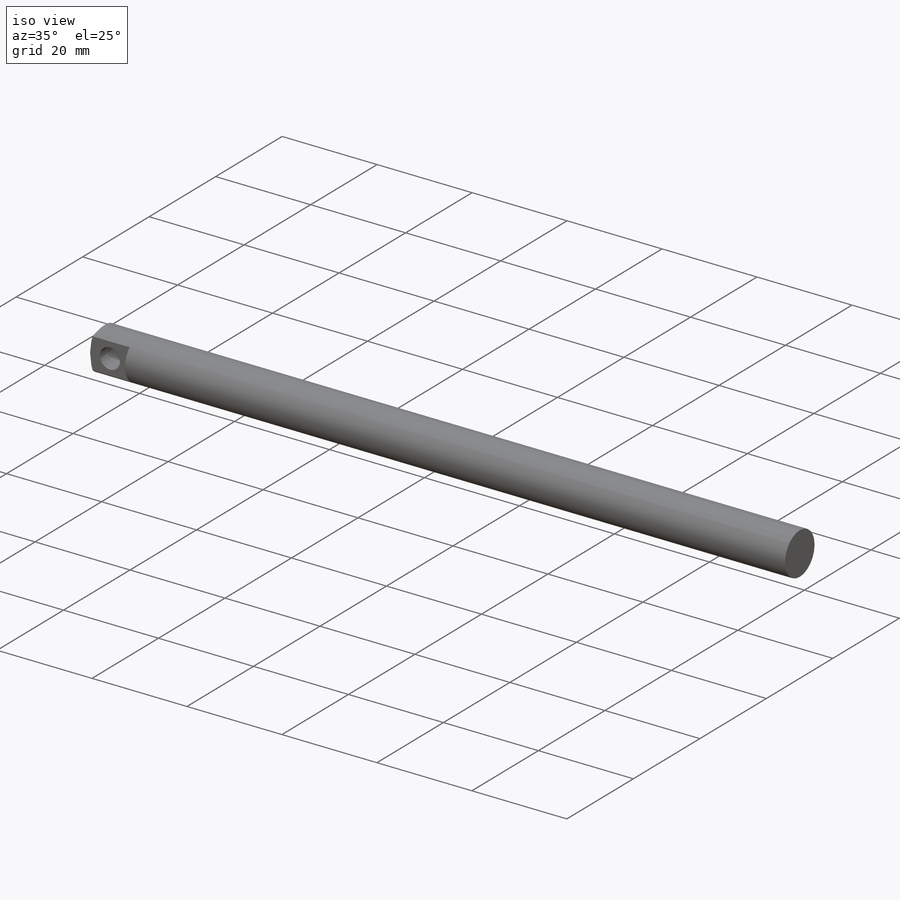
[diagram: iso view]
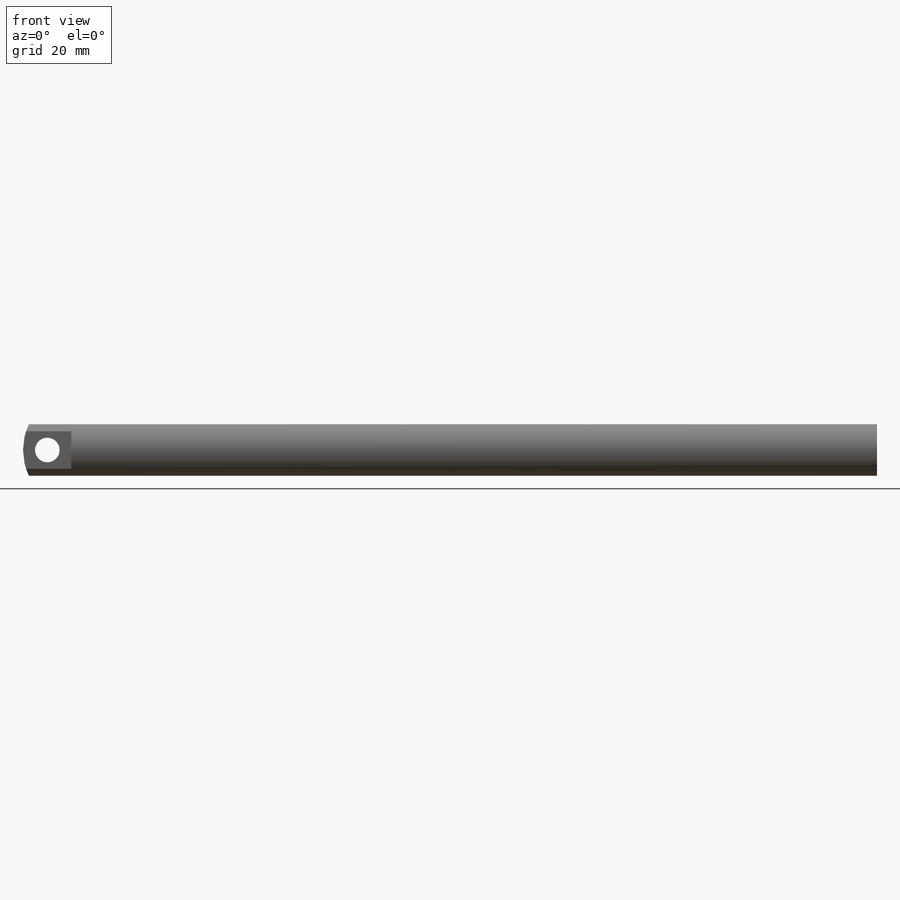
[diagram: front view]
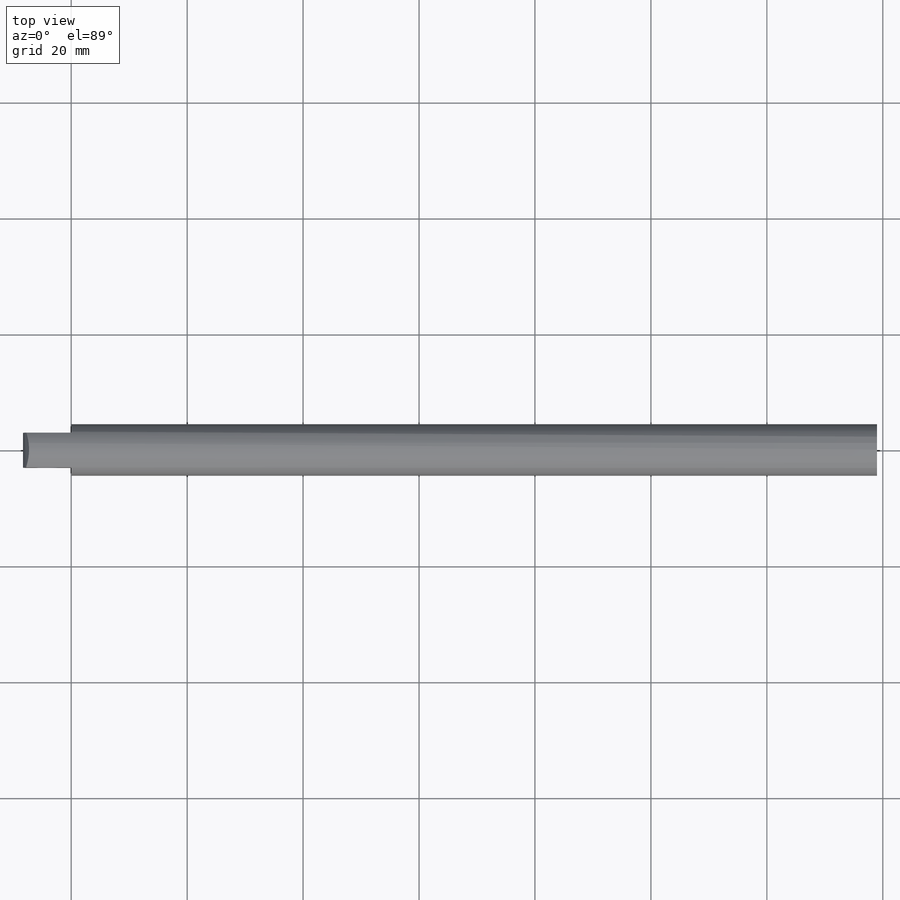
[diagram: top view]
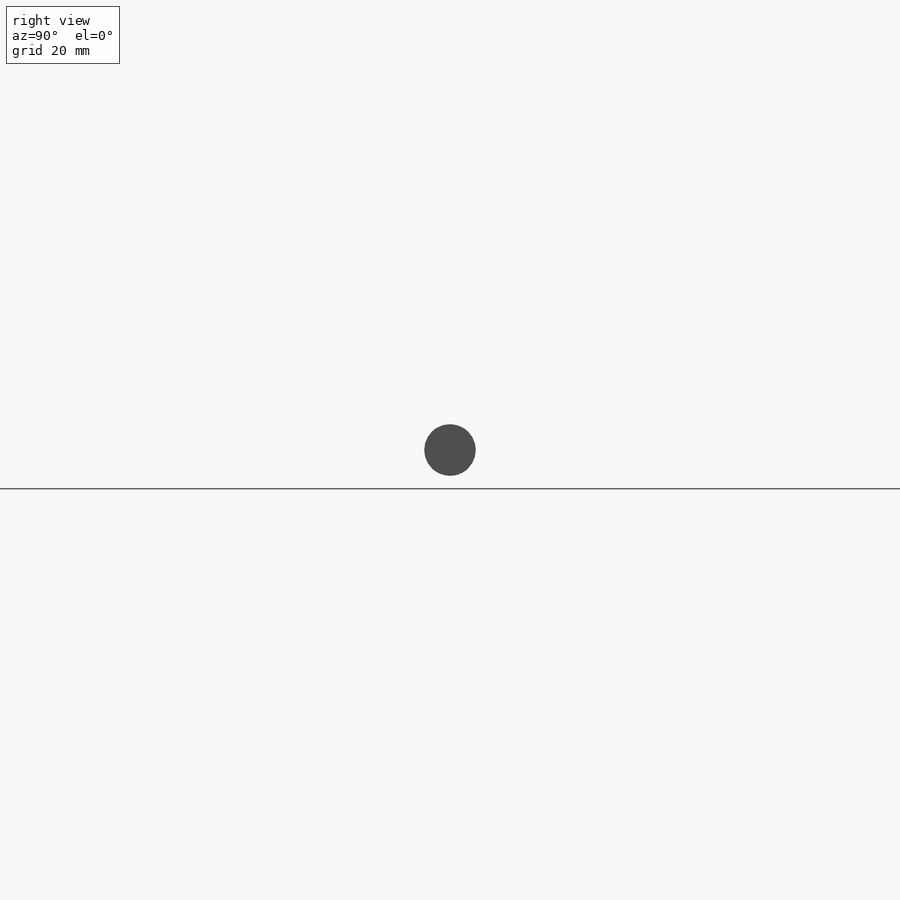
[diagram: right view]
SOLIDWORKS PART (.sldprt)
format: sldprt  version: not decoded by parser v0  size: 241,664 bytes
history: native  units: mm
features: sketch x7, cut_extrude x5, extrude x2, material x1 (+12 scaffold rows collapsed)
feature tree (27):
  scaffold x12  (default folders/planes/origin — collapsed)
  material  "Material <not specified>"
  sketch  "Sketch1"  dims[c1.D3=4.25mm c1.D7=10.0mm c1.D4=4.25mm c1.D1=139.0mm c1.D2=8.9mm c2.D4=7.0mm c2.D5=3.0mm c2.D6=0.5mm c2.D8=1.0mm c3.D4=2.07mm]
  extrude  "Boss-Extrude1"  Depth=9mm
  extrude  "Boss-Extrude2"  [1 undecoded]
  sketch  "Sketch1<3>"  dims[D1=6.0mm]
  sketch  "Sketch2"  dims[D1=8.9mm]
  cut_extrude  "Cut-Extrude1"  Depth=400mm
  sketch  "Sketch5"
  cut_extrude  "Cut-Extrude4"  Depth=400mm
  sketch  "Sketch6"
  cut_extrude  "Cut-Extrude5"  Depth=400mm
  sketch  "Sketch7"
  cut_extrude  "Cut-Extrude6"  Depth=400mm
  sketch  "Sketch8"
  cut_extrude  "Cut-Extrude8"  Depth=722mm
decode coverage: 9 of 14 modeling features carry decoded parameters
note: 1 parameter value undecoded
note: suppression state not decoded; provenance and decode notes live in map.json
